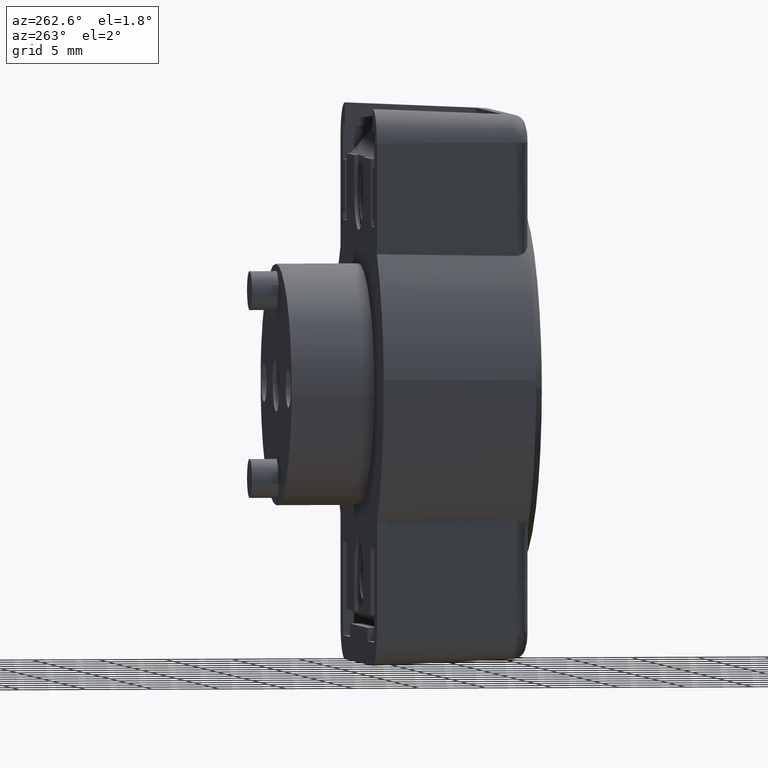
[diagram: clean part render]
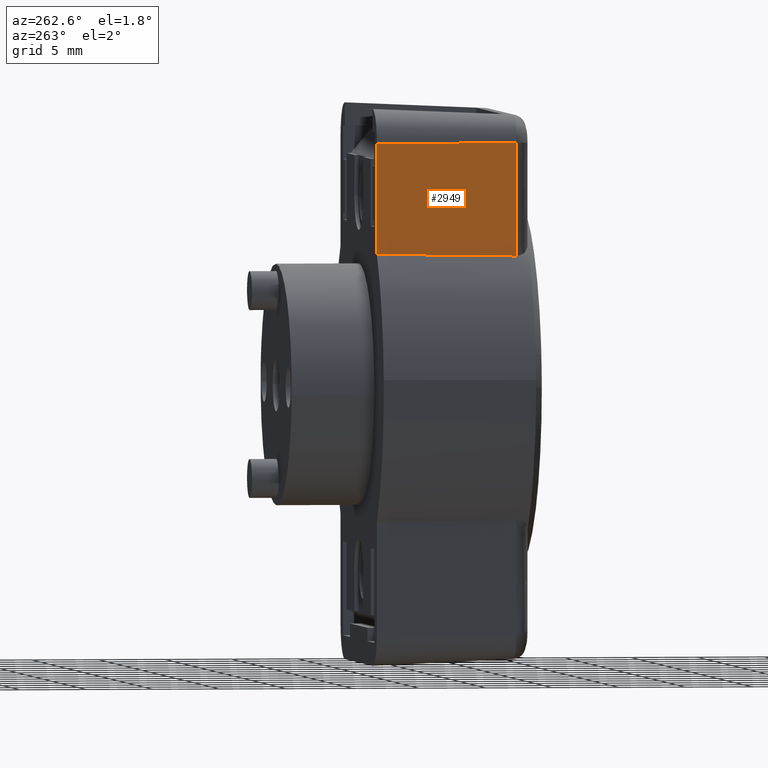
[diagram: same view with one face highlighted and labeled with its STEP entity id]
A machine part, auxiliary view. The second image highlights one B-rep face of the part: STEP entity #2949.
In plain terms, the highlighted face is a freeform B-spline surface patch.
Its self-contained STEP definition (entity closure, byte-faithful):
#716=CARTESIAN_POINT('',(10.541804031383601,-10.058924518231420,9.823243119057588));
#717=VERTEX_POINT('',#716);
#747=CARTESIAN_POINT('',(1.285837E-015,-10.499999999999799,10.000000000000201));
#748=VERTEX_POINT('',#747);
#749=CARTESIAN_POINT('',(10.541804031383601,-10.058924518231420,9.823243119057588));
#750=CARTESIAN_POINT('',(5.317900793773589,-10.277495801701123,9.911641092652529));
#751=CARTESIAN_POINT('',(1.285837E-015,-10.499999999999799,10.000000000000201));
#759=(BOUNDED_CURVE()B_SPLINE_CURVE(2,(#749,#750,#751),.UNSPECIFIED.,.F.,.U.)CURVE()GEOMETRIC_REPRESENTATION_ITEM()QUASI_UNIFORM_CURVE()RATIONAL_B_SPLINE_CURVE((1.0,0.999999014641843,1.0))REPRESENTATION_ITEM(''));
#760=EDGE_CURVE('',#717,#748,#759,.T.);
#1226=CARTESIAN_POINT('',(10.541804031381441,-10.058924518231381,18.250475106497301));
#1227=VERTEX_POINT('',#1226);
#1335=CARTESIAN_POINT('',(10.541804031383601,-10.058924518231420,9.823243119057588));
#1336=CARTESIAN_POINT('',(10.541804031381441,-10.058924518231381,18.250475106497301));
#1337=QUASI_UNIFORM_CURVE('',1,(#1335,#1336),.UNSPECIFIED.,.F.,.U.);
#1338=EDGE_CURVE('',#717,#1227,#1337,.T.);
#2098=CARTESIAN_POINT('',(1.285837E-015,-10.499999999999799,18.256855120558551));
#2099=VERTEX_POINT('',#2098);
#2100=CARTESIAN_POINT('',(10.541804031381430,-10.058924518231370,18.250475106497291));
#2101=CARTESIAN_POINT('',(7.027869354254286,-10.205949678820851,18.252601777851041));
#2102=CARTESIAN_POINT('',(3.513934677127141,-10.352974839410329,18.254728449204830));
#2103=CARTESIAN_POINT('',(-1.097077E-014,-10.499999999999821,18.256855120558580));
#2104=B_SPLINE_CURVE_WITH_KNOTS('',3,(#2100,#2101,#2102,#2103),.UNSPECIFIED.,.F.,.U.,(4,4),(0.416508373127770,0.598128876750643),.UNSPECIFIED.);
#2105=EDGE_CURVE('',#1227,#2099,#2104,.T.);
#2891=CARTESIAN_POINT('',(1.285837E-015,-10.499999999999799,10.000000000000201));
#2892=CARTESIAN_POINT('',(1.285837E-015,-10.499999999999799,18.256855120558551));
#2893=QUASI_UNIFORM_CURVE('',1,(#2891,#2892),.UNSPECIFIED.,.F.,.U.);
#2894=EDGE_CURVE('',#748,#2099,#2893,.T.);
#2938=CARTESIAN_POINT('',(11.068367419195880,-10.036892786350331,9.401984246059381));
#2939=CARTESIAN_POINT('',(-0.526563387812289,-10.522031731880750,9.401984246059381));
#2940=CARTESIAN_POINT('',(11.068367419195880,-10.036892786350331,18.678113616544920));
#2941=CARTESIAN_POINT('',(-0.526563387812289,-10.522031731880750,18.678113616544920));
#2942=B_SPLINE_SURFACE_WITH_KNOTS('',1,1,((#2938,#2940),(#2939,#2941)),.UNSPECIFIED.,.F.,.F.,.U.,(2,2),(2,2),(0.0,11.605075623009849),(0.0,9.276129370485538),.UNSPECIFIED.);
#2943=ORIENTED_EDGE('',*,*,#760,.F.);
#2944=ORIENTED_EDGE('',*,*,#1338,.T.);
#2945=ORIENTED_EDGE('',*,*,#2105,.T.);
#2946=ORIENTED_EDGE('',*,*,#2894,.F.);
#2947=EDGE_LOOP('',(#2943,#2944,#2945,#2946));
#2948=FACE_OUTER_BOUND('',#2947,.T.);
#2949=ADVANCED_FACE('',(#2948),#2942,.F.);